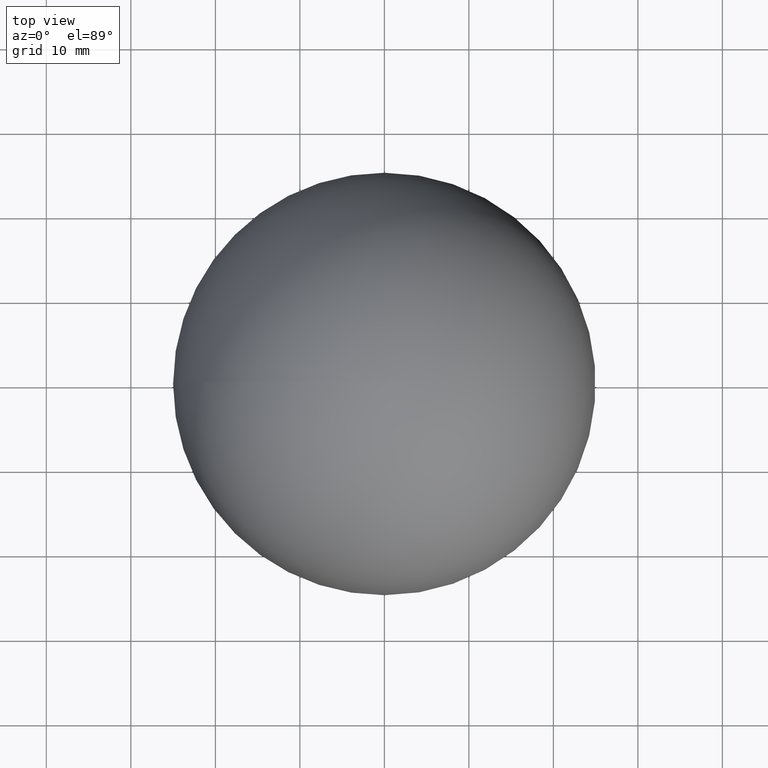
[diagram: clean part render]
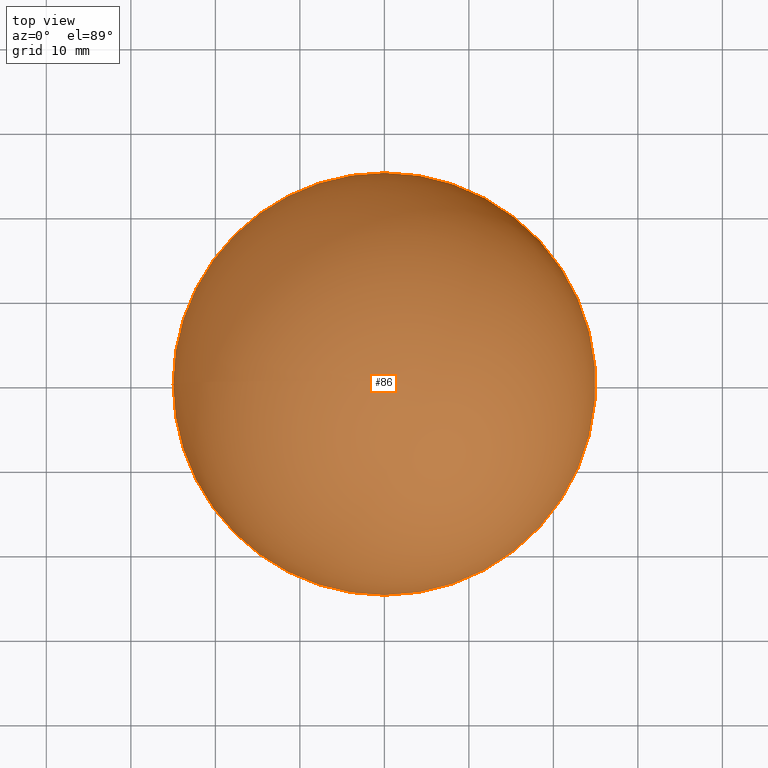
[diagram: same view with one face highlighted and labeled with its STEP entity id]
A machine part, top view. The second image highlights one B-rep face of the part: STEP entity #86.
In plain terms, the highlighted spherical surface has radius 25 mm.
Its self-contained STEP definition (entity closure, byte-faithful):
#2 = VERTEX_POINT ( 'NONE', #25 ) ;
#8 = EDGE_CURVE ( 'NONE', #2, #72, #99, .T. ) ;
#10 = AXIS2_PLACEMENT_3D ( 'NONE', #100, #123, #118 ) ;
#21 = EDGE_CURVE ( 'NONE', #2, #72, #41, .T. ) ;
#25 = CARTESIAN_POINT ( 'NONE',  ( -1.530808498934191500E-015, 25.00000000000000000, 0.0000000000000000000 ) ) ;
#41 = CIRCLE ( 'NONE', #114, 25.00000000000000000 ) ;
#51 = ORIENTED_EDGE ( 'NONE', *, *, #21, .F. ) ;
#60 = EDGE_LOOP ( 'NONE', ( #51, #92 ) ) ;
#71 = AXIS2_PLACEMENT_3D ( 'NONE', #98, #96, #95 ) ;
#72 = VERTEX_POINT ( 'NONE', #124 ) ;
#86 = ADVANCED_FACE ( 'NONE', ( #115 ), #90, .T. ) ;
#90 = SPHERICAL_SURFACE ( 'NONE', #71, 25.00000000000000000 ) ;
#92 = ORIENTED_EDGE ( 'NONE', *, *, #8, .T. ) ;
#95 = DIRECTION ( 'NONE',  ( -1.000000000000000000, 0.0000000000000000000, 0.0000000000000000000 ) ) ;
#96 = DIRECTION ( 'NONE',  ( -0.0000000000000000000, -0.0000000000000000000, -1.000000000000000000 ) ) ;
#98 = CARTESIAN_POINT ( 'NONE',  ( 0.0000000000000000000, 0.0000000000000000000, 0.0000000000000000000 ) ) ;
#99 = CIRCLE ( 'NONE', #10, 25.00000000000000000 ) ;
#100 = CARTESIAN_POINT ( 'NONE',  ( 0.0000000000000000000, 0.0000000000000000000, 0.0000000000000000000 ) ) ;
#105 = DIRECTION ( 'NONE',  ( -1.000000000000000000, 0.0000000000000000000, 1.224646799147353200E-016 ) ) ;
#107 = DIRECTION ( 'NONE',  ( -1.224646799147353200E-016, 0.0000000000000000000, -1.000000000000000000 ) ) ;
#108 = CARTESIAN_POINT ( 'NONE',  ( 0.0000000000000000000, 0.0000000000000000000, 0.0000000000000000000 ) ) ;
#114 = AXIS2_PLACEMENT_3D ( 'NONE', #108, #107, #105 ) ;
#115 = FACE_OUTER_BOUND ( 'NONE', #60, .T. ) ;
#118 = DIRECTION ( 'NONE',  ( 1.000000000000000000, 0.0000000000000000000, 0.0000000000000000000 ) ) ;
#123 = DIRECTION ( 'NONE',  ( -0.0000000000000000000, 0.0000000000000000000, 1.000000000000000000 ) ) ;
#124 = CARTESIAN_POINT ( 'NONE',  ( -1.530808498934191500E-015, -25.00000000000000000, 0.0000000000000000000 ) ) ;